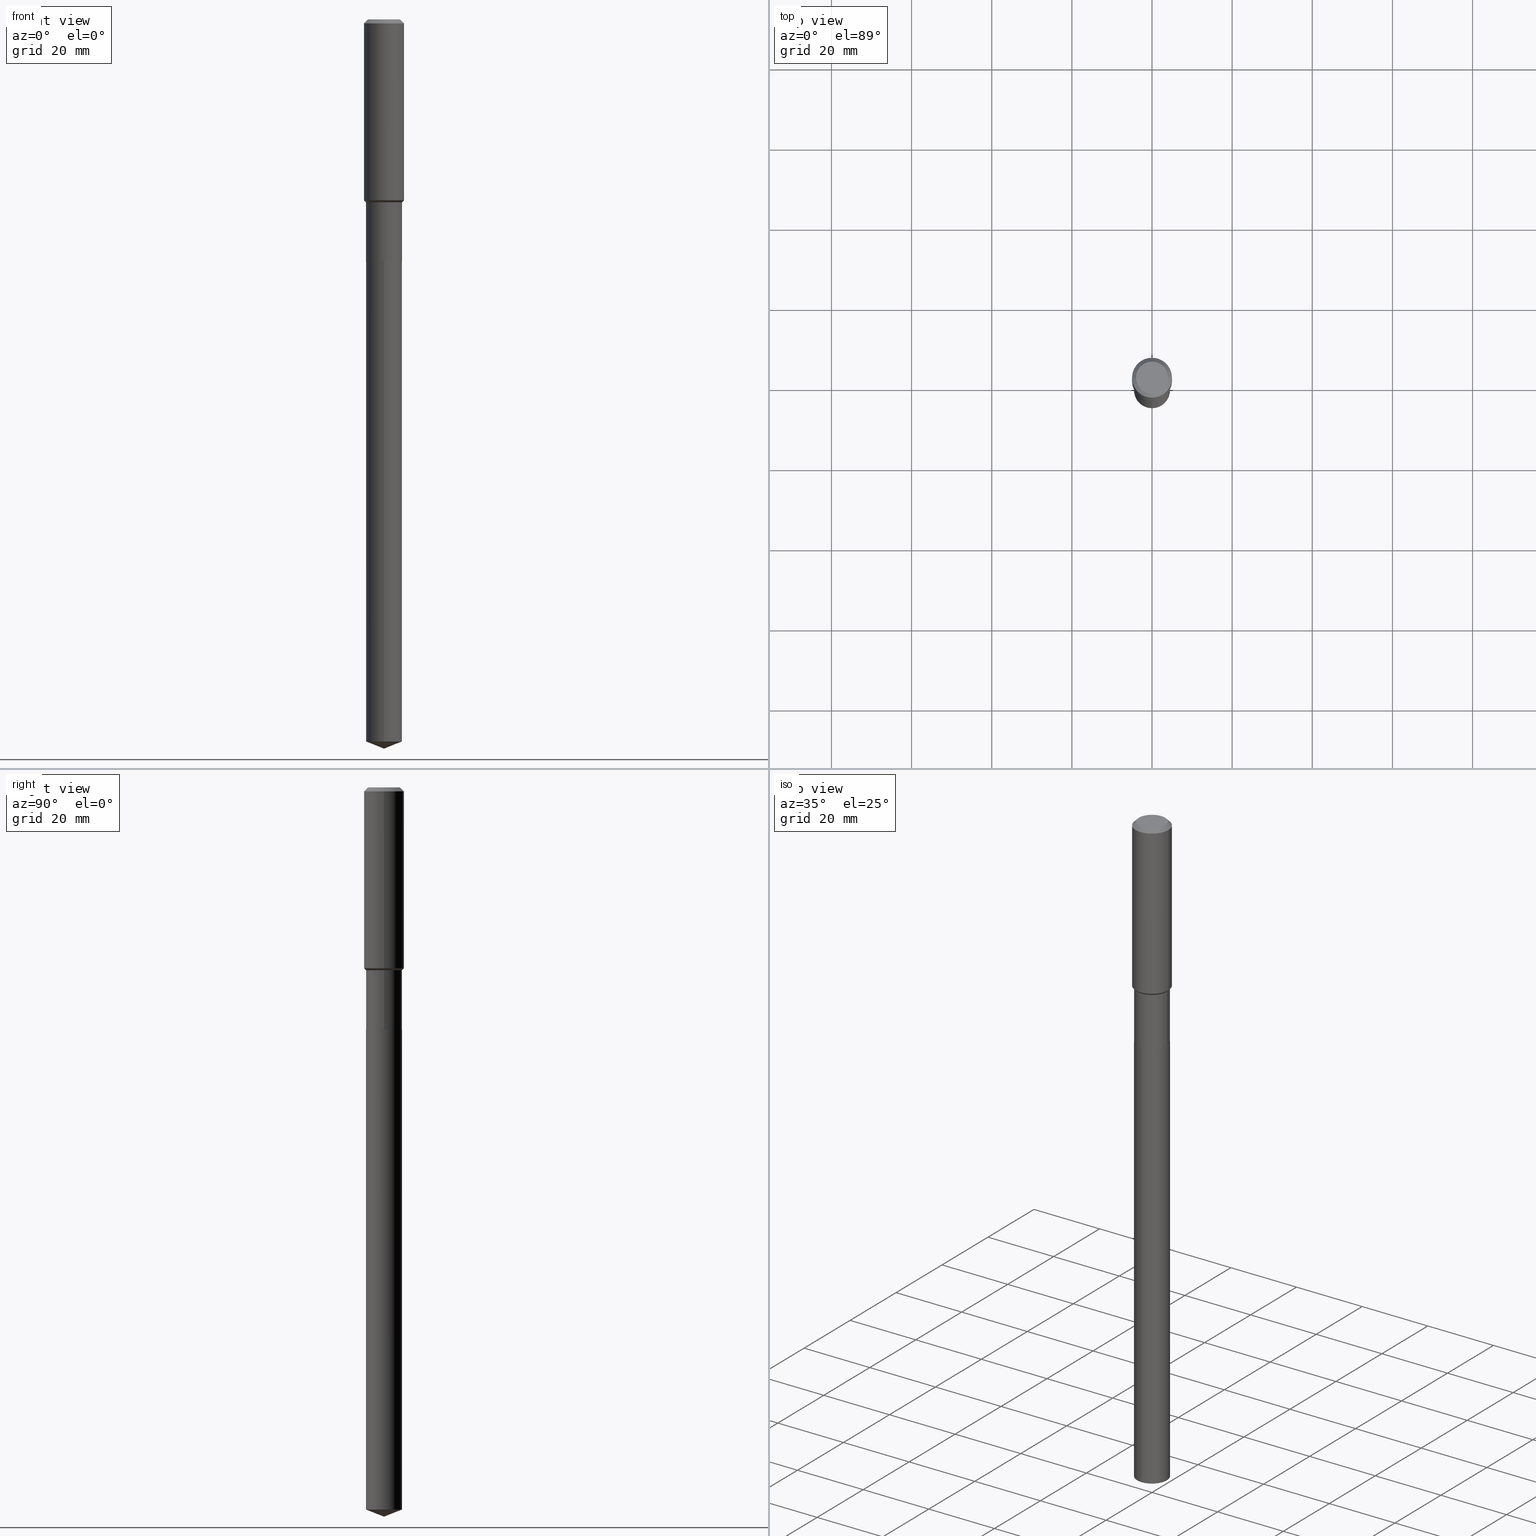
[diagram: canonical four-view strip — front | top / right | iso, engineering-drawing reading convention]
A machine part, canonical four-view strip (front | top / right | iso — engineering-drawing reading convention). The complete STEP part file that produces these views, byte-faithful:
ISO-10303-21;
HEADER;
FILE_DESCRIPTION (( 'STEP AP203' ),
    '1' );
FILE_NAME ('66769.STEP',
    '2024-04-25T05:45:25',
    ( '' ),
    ( '' ),
    'SwSTEP 2.0',
    'SolidWorks 2023',
    '' );
FILE_SCHEMA (( 'CONFIG_CONTROL_DESIGN' ));
ENDSEC;

DATA;
#1 = DIRECTION ( 'NONE',  ( -2.445468806185136597E-29, 3.491481338843145583E-15, 1.000000000000000000 ) ) ;
#2 = CIRCLE ( 'NONE', #179, 0.1771500000000000019 ) ;
#3 = ORIENTED_EDGE ( 'NONE', *, *, #36, .T. ) ;
#4 = DATE_AND_TIME ( #467, #297 ) ;
#5 = DIRECTION ( 'NONE',  ( -2.445468806185136597E-29, 3.491481338843145583E-15, 1.000000000000000000 ) ) ;
#6 = EDGE_CURVE ( 'NONE', #230, #444, #480, .T. ) ;
#7 = AXIS2_PLACEMENT_3D ( 'NONE', #332, #1, #293 ) ;
#8 = EDGE_LOOP ( 'NONE', ( #202, #478 ) ) ;
#9 = AXIS2_PLACEMENT_3D ( 'NONE', #237, #31, #133 ) ;
#10 = APPROVAL ( #277, 'UNSPECIFIED' ) ;
#11 = EDGE_LOOP ( 'NONE', ( #301, #402, #154, #58 ) ) ;
#12 = DIRECTION ( 'NONE',  ( -2.445468806185136597E-29, 3.491481338843145583E-15, 1.000000000000000000 ) ) ;
#13 = DIRECTION ( 'NONE',  ( -2.445468806185136597E-29, 3.491481338843145583E-15, 1.000000000000000000 ) ) ;
#14 = EDGE_CURVE ( 'NONE', #434, #428, #153, .T. ) ;
#15 = CARTESIAN_POINT ( 'NONE',  ( 0.1771500000000000574, -9.549899758003767043E-15, -2.380900000000000016 ) ) ;
#16 = CONICAL_SURFACE ( 'NONE', #311, 99.94676754583930745, 1.195550537616117293 ) ;
#17 = EDGE_LOOP ( 'NONE', ( #406, #459, #473, #193 ) ) ;
#18 = CC_DESIGN_APPROVAL ( #307, ( #189 ) ) ;
#19 = ADVANCED_FACE ( 'NONE', ( #175 ), #485, .F. ) ;
#20 = DIRECTION ( 'NONE',  ( -2.445443105492104363E-29, 3.491518143698360498E-15, 1.000000000000000000 ) ) ;
#21 = ORIENTED_EDGE ( 'NONE', *, *, #198, .F. ) ;
#22 = CARTESIAN_POINT ( 'NONE',  ( -0.1968500000000002192, -4.806357260048276677E-15, -1.777199999999999225 ) ) ;
#23 = ORIENTED_EDGE ( 'NONE', *, *, #462, .F. ) ;
#24 = CYLINDRICAL_SURFACE ( 'NONE', #42, 0.1771499999999999742 ) ;
#25 = DESIGN_CONTEXT ( 'detailed design', #238, 'design' ) ;
#26 = ORIENTED_EDGE ( 'NONE', *, *, #34, .T. ) ;
#27 = VECTOR ( 'NONE', #333, 39.37007874015748854 ) ;
#28 = VECTOR ( 'NONE', #337, 39.37007874015748143 ) ;
#29 = CARTESIAN_POINT ( 'NONE',  ( -7.875562656331807670E-28, 1.124447043875763845E-13, 32.20507874015748229 ) ) ;
#30 = VECTOR ( 'NONE', #111, 39.37007874015748143 ) ;
#31 = DIRECTION ( 'NONE',  ( -2.445468806185136597E-29, 3.491481338843145583E-15, 1.000000000000000000 ) ) ;
#32 = DIRECTION ( 'NONE',  ( -0.7071067811865462405, 7.493145998870349427E-15, 0.7071067811865486830 ) ) ;
#33 = PERSON_AND_ORGANIZATION_ROLE ( 'creator' ) ;
#34 = EDGE_CURVE ( 'NONE', #431, #470, #177, .T. ) ;
#35 = DIRECTION ( 'NONE',  ( -2.445443105492104363E-29, 3.491518143698360892E-15, 1.000000000000000000 ) ) ;
#36 = EDGE_CURVE ( 'NONE', #230, #245, #328, .T. ) ;
#37 = VECTOR ( 'NONE', #415, 39.37007874015748854 ) ;
#38 = CLOSED_SHELL ( 'NONE', ( #209, #441, #472, #203, #298, #136, #156, #205, #47, #416, #72, #181 ) ) ;
#39 = PERSON_AND_ORGANIZATION_ROLE ( 'design_supplier' ) ;
#40 = DIRECTION ( 'NONE',  ( -6.497071151882114314E-15, -0.9304175679820237965, 0.3665012267242991340 ) ) ;
#41 = DATE_AND_TIME ( #376, #108 ) ;
#42 = AXIS2_PLACEMENT_3D ( 'NONE', #101, #125, #64 ) ;
#43 = VECTOR ( 'NONE', #40, 39.37007874015748143 ) ;
#44 = EDGE_LOOP ( 'NONE', ( #207, #204 ) ) ;
#45 = PERSON_AND_ORGANIZATION ( #178, #100 ) ;
#46 = APPROVAL_DATE_TIME ( #4, #307 ) ;
#47 = ADVANCED_FACE ( 'NONE', ( #259 ), #299, .T. ) ;
#48 = FACE_OUTER_BOUND ( 'NONE', #201, .T. ) ;
#49 = PERSON_AND_ORGANIZATION ( #178, #100 ) ;
#50 = CARTESIAN_POINT ( 'NONE',  ( 0.1766500000000000015, -9.548154017334344750E-15, -2.381399999999999739 ) ) ;
#51 = ORIENTED_EDGE ( 'NONE', *, *, #120, .T. ) ;
#52 = CARTESIAN_POINT ( 'NONE',  ( 5.823639415049284810E-29, -8.314613660321066941E-15, -2.381399999999999739 ) ) ;
#53 = EDGE_CURVE ( 'NONE', #434, #385, #138, .T. ) ;
#54 = DIRECTION ( 'NONE',  ( -0.7071067811865452413, 2.468850131082233000E-15, -0.7071067811865497932 ) ) ;
#55 = DIRECTION ( 'NONE',  ( 6.982962677686265922E-15, 1.000000000000000000, -3.491518143698360892E-15 ) ) ;
#56 = FACE_OUTER_BOUND ( 'NONE', #388, .T. ) ;
#57 = CARTESIAN_POINT ( 'NONE',  ( 1.752159985085092732E-28, -2.501672749959875005E-14, -7.165000000000000036 ) ) ;
#58 = ORIENTED_EDGE ( 'NONE', *, *, #36, .F. ) ;
#59 = CIRCLE ( 'NONE', #224, 0.1968500000000000250 ) ;
#60 = PLANE ( 'NONE',  #420 ) ;
#61 = ORIENTED_EDGE ( 'NONE', *, *, #454, .T. ) ;
#62 = CARTESIAN_POINT ( 'NONE',  ( -9.427742298522567634E-47, 1.346031739168368355E-32, 3.855188123715870730E-18 ) ) ;
#63 = DIRECTION ( 'NONE',  ( -2.445468806185136597E-29, 3.491481338843145583E-15, 1.000000000000000000 ) ) ;
#64 = DIRECTION ( 'NONE',  ( 1.000000000000000000, -6.982962677686266711E-15, 4.876176775795935793E-29 ) ) ;
#65 = EDGE_CURVE ( 'NONE', #99, #281, #219, .T. ) ;
#66 = ORIENTED_EDGE ( 'NONE', *, *, #70, .T. ) ;
#67 = AXIS2_PLACEMENT_3D ( 'NONE', #286, #217, #253 ) ;
#68 = FACE_OUTER_BOUND ( 'NONE', #228, .T. ) ;
#69 = APPROVAL_DATE_TIME ( #410, #10 ) ;
#70 = EDGE_CURVE ( 'NONE', #281, #428, #141, .T. ) ;
#71 = CARTESIAN_POINT ( 'NONE',  ( 1.735101500038385623E-28, -2.477299738433002409E-14, -7.095218759244812823 ) ) ;
#72 = ADVANCED_FACE ( 'NONE', ( #79 ), #222, .F. ) ;
#73 = DIRECTION ( 'NONE',  ( 2.445468806185136597E-29, -3.491481338843145583E-15, -1.000000000000000000 ) ) ;
#74 = VECTOR ( 'NONE', #121, 39.37007874015748143 ) ;
#75 = EDGE_CURVE ( 'NONE', #281, #99, #412, .T. ) ;
#76 = AXIS2_PLACEMENT_3D ( 'NONE', #83, #377, #448 ) ;
#77 = DIRECTION ( 'NONE',  ( -1.000000000000000000, 6.982962677686265922E-15, 0.000000000000000000 ) ) ;
#78 = SECURITY_CLASSIFICATION_LEVEL ( 'unclassified' ) ;
#79 = FACE_OUTER_BOUND ( 'NONE', #44, .T. ) ;
#80 = ADVANCED_BREP_SHAPE_REPRESENTATION ( '66769', ( #443, #115, #123 ), #112 ) ;
#81 = DIRECTION ( 'NONE',  ( 0.000000000000000000, 0.000000000000000000, 1.000000000000000000 ) ) ;
#82 = COORDINATED_UNIVERSAL_TIME_OFFSET ( 5, 0, .BEHIND. ) ;
#83 = CARTESIAN_POINT ( 'NONE',  ( 5.823639415049284810E-29, -8.314613660321066941E-15, -2.381399999999999739 ) ) ;
#84 = VECTOR ( 'NONE', #200, 39.37007874015748143 ) ;
#85 = PERSON_AND_ORGANIZATION ( #178, #100 ) ;
#86 = EDGE_LOOP ( 'NONE', ( #270, #266, #211, #172 ) ) ;
#87 = FACE_OUTER_BOUND ( 'NONE', #346, .T. ) ;
#88 = FACE_OUTER_BOUND ( 'NONE', #86, .T. ) ;
#89 = DIRECTION ( 'NONE',  ( -2.445468806185136877E-29, 3.491481338843145188E-15, 1.000000000000000000 ) ) ;
#90 = CIRCLE ( 'NONE', #290, 0.1968500000000002192 ) ;
#91 = PRODUCT_DEFINITION_FORMATION_WITH_SPECIFIED_SOURCE ( 'ANY', '', #283, .NOT_KNOWN. ) ;
#92 = CARTESIAN_POINT ( 'NONE',  ( 4.394262897834071178E-29, -6.273842817767247228E-15, -1.796899999999999720 ) ) ;
#93 = ORIENTED_EDGE ( 'NONE', *, *, #214, .T. ) ;
#94 = DIRECTION ( 'NONE',  ( 1.000000000000000000, -6.982962677686264344E-15, 0.000000000000000000 ) ) ;
#95 = CALENDAR_DATE ( 2024, 25, 4 ) ;
#96 = ORIENTED_EDGE ( 'NONE', *, *, #392, .T. ) ;
#97 = CARTESIAN_POINT ( 'NONE',  ( -0.1968500000000000250, -1.772556752507387433E-15, -0.03937000000000026589 ) ) ;
#98 = CONICAL_SURFACE ( 'NONE', #150, 0.1766500000000000015, 0.7853981633975849475 ) ;
#99 = VERTEX_POINT ( 'NONE', #460 ) ;
#100 = ORGANIZATION ( 'UNSPECIFIED', 'UNSPECIFIED', '' ) ;
#101 = CARTESIAN_POINT ( 'NONE',  ( 0.000000000000000000, 0.000000000000000000, 0.000000000000000000 ) ) ;
#102 = ORIENTED_EDGE ( 'NONE', *, *, #454, .F. ) ;
#103 = CC_DESIGN_DATE_AND_TIME_ASSIGNMENT ( #251, #126, ( #433 ) ) ;
#104 = DIRECTION ( 'NONE',  ( -1.000000000000000000, 6.982962677686265922E-15, 0.000000000000000000 ) ) ;
#105 = COORDINATED_UNIVERSAL_TIME_OFFSET ( 5, 0, .BEHIND. ) ;
#106 = ORIENTED_EDGE ( 'NONE', *, *, #386, .F. ) ;
#107 = FACE_OUTER_BOUND ( 'NONE', #325, .T. ) ;
#108 = LOCAL_TIME ( 1, 45, 25.00000000000000000, #82 ) ;
#109 = FACE_OUTER_BOUND ( 'NONE', #17, .T. ) ;
#110 = CARTESIAN_POINT ( 'NONE',  ( 0.1968500000000001082, -1.374596203102542397E-15, 9.598753983154305062E-30 ) ) ;
#111 = DIRECTION ( 'NONE',  ( -2.445468806185136877E-29, 3.491481338843145188E-15, 1.000000000000000000 ) ) ;
#112 =( GEOMETRIC_REPRESENTATION_CONTEXT ( 3 ) GLOBAL_UNCERTAINTY_ASSIGNED_CONTEXT ( ( #417 ) ) GLOBAL_UNIT_ASSIGNED_CONTEXT ( ( #451, #296, #455 ) ) REPRESENTATION_CONTEXT ( 'NONE', 'WORKASPACE' ) );
#113 = PERSON_AND_ORGANIZATION_ROLE ( 'classification_officer' ) ;
#114 = EDGE_CURVE ( 'NONE', #278, #195, #147, .T. ) ;
#115 = MANIFOLD_SOLID_BREP ( 'Body-Move/Copy2[2]', #38 ) ;
#116 = MECHANICAL_CONTEXT ( 'NONE', #341, 'mechanical' ) ;
#117 = ORIENTED_EDGE ( 'NONE', *, *, #65, .T. ) ;
#118 = CARTESIAN_POINT ( 'NONE',  ( 4.346087162352223319E-29, -6.205060635392036043E-15, -1.777199999999999225 ) ) ;
#119 = CONICAL_SURFACE ( 'NONE', #280, 0.1968500000000000250, 0.7853981633974450594 ) ;
#120 = EDGE_CURVE ( 'NONE', #421, #245, #129, .T. ) ;
#121 = DIRECTION ( 'NONE',  ( 0.7071067811865452413, -7.319954787623248157E-15, -0.7071067811865497932 ) ) ;
#122 = CIRCLE ( 'NONE', #295, 0.1771500000000000019 ) ;
#123 = AXIS2_PLACEMENT_3D ( 'NONE', #260, #81, #375 ) ;
#124 = ORIENTED_EDGE ( 'NONE', *, *, #450, .T. ) ;
#125 = DIRECTION ( 'NONE',  ( -2.445468806185136597E-29, 3.491481338843145583E-15, 1.000000000000000000 ) ) ;
#126 = DATE_TIME_ROLE ( 'creation_date' ) ;
#127 = ORIENTED_EDGE ( 'NONE', *, *, #198, .T. ) ;
#128 = CARTESIAN_POINT ( 'NONE',  ( 9.627810689950948900E-31, -1.374596203102555561E-16, -0.03937000000000026589 ) ) ;
#129 = CIRCLE ( 'NONE', #319, 0.1771500000000000574 ) ;
#130 = ORIENTED_EDGE ( 'NONE', *, *, #414, .T. ) ;
#131 = VECTOR ( 'NONE', #327, 39.37007874015748143 ) ;
#132 = DIRECTION ( 'NONE',  ( 2.438088387897960049E-29, -3.491481338843145188E-15, -1.000000000000000000 ) ) ;
#133 = DIRECTION ( 'NONE',  ( 1.000000000000000000, -6.982962677686265922E-15, 0.000000000000000000 ) ) ;
#134 = DIRECTION ( 'NONE',  ( 1.000000000000000000, -6.982962677686265922E-15, 0.000000000000000000 ) ) ;
#135 = CARTESIAN_POINT ( 'NONE',  ( 5.823639415049284810E-29, -8.314613660321066941E-15, -2.381399999999999739 ) ) ;
#136 = ADVANCED_FACE ( 'NONE', ( #56 ), #291, .T. ) ;
#137 = CARTESIAN_POINT ( 'NONE',  ( -4.713871149261283817E-47, 6.730158695841841775E-33, 1.927594061857935365E-18 ) ) ;
#138 = LINE ( 'NONE', #449, #30 ) ;
#139 = AXIS2_PLACEMENT_3D ( 'NONE', #160, #312, #239 ) ;
#140 = APPROVAL_STATUS ( 'not_yet_approved' ) ;
#141 = LINE ( 'NONE', #294, #37 ) ;
#142 = CC_DESIGN_PERSON_AND_ORGANIZATION_ASSIGNMENT ( #401, #33, ( #91 ) ) ;
#143 = AXIS2_PLACEMENT_3D ( 'NONE', #191, #338, #268 ) ;
#144 = PERSON_AND_ORGANIZATION ( #178, #100 ) ;
#145 = ORIENTED_EDGE ( 'NONE', *, *, #258, .F. ) ;
#146 = SHAPE_DEFINITION_REPRESENTATION ( #324, #80 ) ;
#147 = LINE ( 'NONE', #194, #27 ) ;
#148 = CARTESIAN_POINT ( 'NONE',  ( 0.1771499999999999464, -7.510874656119368833E-15, -1.796899999999999720 ) ) ;
#149 = EDGE_LOOP ( 'NONE', ( #192, #240, #124, #145 ) ) ;
#150 = AXIS2_PLACEMENT_3D ( 'NONE', #269, #309, #94 ) ;
#151 = FACE_OUTER_BOUND ( 'NONE', #149, .T. ) ;
#152 = LOCAL_TIME ( 1, 45, 25.00000000000000000, #358 ) ;
#153 = CIRCLE ( 'NONE', #9, 0.1968500000000002192 ) ;
#154 = ORIENTED_EDGE ( 'NONE', *, *, #371, .F. ) ;
#155 = DIRECTION ( 'NONE',  ( 1.000000000000000000, -6.982962677686263555E-15, 0.000000000000000000 ) ) ;
#156 = ADVANCED_FACE ( 'NONE', ( #190 ), #354, .T. ) ;
#157 = ORIENTED_EDGE ( 'NONE', *, *, #256, .T. ) ;
#158 = DIRECTION ( 'NONE',  ( -6.982962677686265922E-15, -1.000000000000000000, 3.084220145260246224E-15 ) ) ;
#159 = ORIENTED_EDGE ( 'NONE', *, *, #414, .F. ) ;
#160 = CARTESIAN_POINT ( 'NONE',  ( 9.627810689950948900E-31, -1.374596203102555561E-16, -0.03937000000000026589 ) ) ;
#161 = CONICAL_SURFACE ( 'NONE', #364, 0.1771499999999999464, 0.7853981633974466137 ) ;
#162 = EDGE_LOOP ( 'NONE', ( #216, #465, #303, #164 ) ) ;
#163 = LINE ( 'NONE', #241, #457 ) ;
#164 = ORIENTED_EDGE ( 'NONE', *, *, #34, .F. ) ;
#165 = DIRECTION ( 'NONE',  ( -2.445443105492104363E-29, 3.491518143698360498E-15, 1.000000000000000000 ) ) ;
#166 = CC_DESIGN_PERSON_AND_ORGANIZATION_ASSIGNMENT ( #170, #481, ( #433 ) ) ;
#167 = ORIENTED_EDGE ( 'NONE', *, *, #120, .F. ) ;
#168 = DIRECTION ( 'NONE',  ( -2.445468806185136597E-29, 3.491481338843145583E-15, 1.000000000000000000 ) ) ;
#169 = CARTESIAN_POINT ( 'NONE',  ( 9.627810689950948900E-31, -1.374596203102555561E-16, -0.03937000000000026589 ) ) ;
#170 = PERSON_AND_ORGANIZATION ( #178, #100 ) ;
#171 = CIRCLE ( 'NONE', #139, 0.1968500000000000250 ) ;
#172 = ORIENTED_EDGE ( 'NONE', *, *, #70, .F. ) ;
#173 = DIRECTION ( 'NONE',  ( -6.982962677686265922E-15, -1.000000000000000000, 6.168440290520492448E-15 ) ) ;
#174 = COORDINATED_UNIVERSAL_TIME_OFFSET ( 5, 0, .BEHIND. ) ;
#175 = FACE_OUTER_BOUND ( 'NONE', #262, .T. ) ;
#176 = CARTESIAN_POINT ( 'NONE',  ( 1.735101500038385623E-28, -2.477299738433002409E-14, -7.095218759244812823 ) ) ;
#177 = LINE ( 'NONE', #221, #131 ) ;
#178 = PERSON ( 'UNSPECIFIED', 'UNSPECIFIED', 'UNSPECIFIED', ('UNSPECIFIED'), ('UNSPECIFIED'), ('UNSPECIFIED') ) ;
#179 = AXIS2_PLACEMENT_3D ( 'NONE', #71, #326, #173 ) ;
#180 = VECTOR ( 'NONE', #35, 39.37007874015748143 ) ;
#181 = ADVANCED_FACE ( 'NONE', ( #48 ), #387, .T. ) ;
#182 = DIRECTION ( 'NONE',  ( -2.445468806185136597E-29, 3.491481338843145583E-15, 1.000000000000000000 ) ) ;
#183 = LINE ( 'NONE', #373, #180 ) ;
#184 = EDGE_CURVE ( 'NONE', #421, #99, #274, .T. ) ;
#185 = DIRECTION ( 'NONE',  ( -2.438088387897960049E-29, 3.491481338843145188E-15, 1.000000000000000000 ) ) ;
#186 = EDGE_CURVE ( 'NONE', #428, #434, #90, .T. ) ;
#187 = APPLICATION_PROTOCOL_DEFINITION ( 'international standard', 'config_control_design', 1994, #341 ) ;
#188 = VECTOR ( 'NONE', #479, 39.37007874015748143 ) ;
#189 = SECURITY_CLASSIFICATION ( '', '', #78 ) ;
#190 = FACE_OUTER_BOUND ( 'NONE', #199, .T. ) ;
#191 = CARTESIAN_POINT ( 'NONE',  ( 4.394262897834071178E-29, -6.273842817767247228E-15, -1.796899999999999720 ) ) ;
#192 = ORIENTED_EDGE ( 'NONE', *, *, #53, .F. ) ;
#193 = ORIENTED_EDGE ( 'NONE', *, *, #231, .F. ) ;
#194 = CARTESIAN_POINT ( 'NONE',  ( 1.752172333147888775E-28, -2.501655220543433598E-14, -7.165000000000000036 ) ) ;
#195 = VERTEX_POINT ( 'NONE', #464 ) ;
#196 = CIRCLE ( 'NONE', #389, 0.1771500000000000019 ) ;
#197 = CARTESIAN_POINT ( 'NONE',  ( 0.1771499999999999742, -1.237031838352121999E-15, 8.638147158322498559E-30 ) ) ;
#198 = EDGE_CURVE ( 'NONE', #430, #470, #122, .T. ) ;
#199 = EDGE_LOOP ( 'NONE', ( #106, #117, #66, #359 ) ) ;
#200 = DIRECTION ( 'NONE',  ( -2.445468806185136877E-29, 3.491481338843145188E-15, 1.000000000000000000 ) ) ;
#201 = EDGE_LOOP ( 'NONE', ( #235, #362, #3, #167 ) ) ;
#202 = ORIENTED_EDGE ( 'NONE', *, *, #489, .T. ) ;
#203 = ADVANCED_FACE ( 'NONE', ( #88 ), #161, .T. ) ;
#204 = ORIENTED_EDGE ( 'NONE', *, *, #285, .F. ) ;
#205 = ADVANCED_FACE ( 'NONE', ( #151 ), #345, .T. ) ;
#206 = CARTESIAN_POINT ( 'NONE',  ( -0.1771500000000000574, -6.034628912310427854E-15, -2.380900000000000016 ) ) ;
#207 = ORIENTED_EDGE ( 'NONE', *, *, #6, .F. ) ;
#208 = DIRECTION ( 'NONE',  ( 1.000000000000000000, -6.982962677686265922E-15, 4.876223630392693006E-29 ) ) ;
#209 = ADVANCED_FACE ( 'NONE', ( #236 ), #98, .T. ) ;
#210 = APPROVAL_DATE_TIME ( #247, #343 ) ;
#211 = ORIENTED_EDGE ( 'NONE', *, *, #186, .F. ) ;
#212 = CARTESIAN_POINT ( 'NONE',  ( 5.823639415049284810E-29, -8.314613660321066941E-15, -2.381399999999999739 ) ) ;
#213 = DIMENSIONAL_EXPONENTS ( 1.000000000000000000, 0.000000000000000000, 0.000000000000000000, 0.000000000000000000, 0.000000000000000000, 0.000000000000000000, 0.000000000000000000 ) ;
#214 = EDGE_CURVE ( 'NONE', #273, #437, #426, .T. ) ;
#215 = CIRCLE ( 'NONE', #408, 0.1574800000000000089 ) ;
#216 = ORIENTED_EDGE ( 'NONE', *, *, #348, .T. ) ;
#217 = DIRECTION ( 'NONE',  ( -2.445443105492104363E-29, 3.491518143698360498E-15, 1.000000000000000000 ) ) ;
#218 = DIRECTION ( 'NONE',  ( 0.7071067811866441621, -2.468850131083269169E-15, 0.7071067811864508723 ) ) ;
#219 = CIRCLE ( 'NONE', #7, 0.1771499999999999464 ) ;
#220 = AXIS2_PLACEMENT_3D ( 'NONE', #232, #12, #424 ) ;
#221 = CARTESIAN_POINT ( 'NONE',  ( -1.237031838352063821E-15, -0.1771500000000083008, -2.381399999999999295 ) ) ;
#222 = PLANE ( 'NONE',  #398 ) ;
#223 = AXIS2_PLACEMENT_3D ( 'NONE', #403, #474, #484 ) ;
#224 = AXIS2_PLACEMENT_3D ( 'NONE', #169, #400, #134 ) ;
#225 = CYLINDRICAL_SURFACE ( 'NONE', #413, 0.1968500000000001082 ) ;
#226 = PERSON_AND_ORGANIZATION_ROLE ( 'design_owner' ) ;
#227 = APPROVAL_ROLE ( '' ) ;
#228 = EDGE_LOOP ( 'NONE', ( #353, #61, #159 ) ) ;
#229 = LINE ( 'NONE', #197, #452 ) ;
#230 = VERTEX_POINT ( 'NONE', #50 ) ;
#231 = EDGE_CURVE ( 'NONE', #245, #281, #229, .T. ) ;
#232 = CARTESIAN_POINT ( 'NONE',  ( -9.427742298522567634E-47, 1.346031739168368355E-32, 3.855188123715870730E-18 ) ) ;
#233 = CARTESIAN_POINT ( 'NONE',  ( -0.1968500000000000250, 1.237136582792286225E-15, -0.03937000000000026589 ) ) ;
#234 = CLOSED_SHELL ( 'NONE', ( #447, #379, #292, #302, #19 ) ) ;
#235 = ORIENTED_EDGE ( 'NONE', *, *, #382, .F. ) ;
#236 = FACE_OUTER_BOUND ( 'NONE', #11, .T. ) ;
#237 = CARTESIAN_POINT ( 'NONE',  ( 4.346087162352223319E-29, -6.205060635392036043E-15, -1.777199999999999225 ) ) ;
#238 = APPLICATION_CONTEXT ( 'configuration controlled 3d designs of mechanical parts and assemblies' ) ;
#239 = DIRECTION ( 'NONE',  ( 1.000000000000000000, -6.982962677686265922E-15, 0.000000000000000000 ) ) ;
#240 = ORIENTED_EDGE ( 'NONE', *, *, #14, .T. ) ;
#241 = CARTESIAN_POINT ( 'NONE',  ( -0.1771499999999999464, -5.015116361368230327E-15, -1.796899999999999720 ) ) ;
#242 = CONICAL_SURFACE ( 'NONE', #67, 99.94676754583930745, 1.195550537616117293 ) ;
#243 = APPROVAL_ROLE ( '' ) ;
#244 = LOCAL_TIME ( 1, 45, 25.00000000000000000, #174 ) ;
#245 = VERTEX_POINT ( 'NONE', #15 ) ;
#246 = DIRECTION ( 'NONE',  ( -6.982962677686265922E-15, -1.000000000000000000, 6.168440290520492448E-15 ) ) ;
#247 = DATE_AND_TIME ( #95, #152 ) ;
#248 = CARTESIAN_POINT ( 'NONE',  ( 5.823639415049284810E-29, -8.314613660321066941E-15, -2.381399999999999739 ) ) ;
#249 = DIRECTION ( 'NONE',  ( 1.000000000000000000, -6.982962677686264344E-15, 0.000000000000000000 ) ) ;
#250 = CARTESIAN_POINT ( 'NONE',  ( -0.1766500000000000015, -7.056790690426738949E-15, -2.381399999999999739 ) ) ;
#251 = DATE_AND_TIME ( #475, #458 ) ;
#252 = EDGE_LOOP ( 'NONE', ( #367, #463, #157, #482 ) ) ;
#253 = DIRECTION ( 'NONE',  ( -6.982962677686268288E-15, -1.000000000000000000, 3.498627837350027494E-15 ) ) ;
#254 = AXIS2_PLACEMENT_3D ( 'NONE', #490, #73, #77 ) ;
#255 = DIRECTION ( 'NONE',  ( -6.982962677686265922E-15, -1.000000000000000000, 3.084220145260246224E-15 ) ) ;
#256 = EDGE_CURVE ( 'NONE', #342, #385, #468, .T. ) ;
#257 = LINE ( 'NONE', #372, #43 ) ;
#258 = EDGE_CURVE ( 'NONE', #385, #437, #171, .T. ) ;
#259 = FACE_OUTER_BOUND ( 'NONE', #252, .T. ) ;
#260 = CARTESIAN_POINT ( 'NONE',  ( 0.000000000000000000, 0.000000000000000000, 0.000000000000000000 ) ) ;
#261 = CC_DESIGN_PERSON_AND_ORGANIZATION_ASSIGNMENT ( #144, #113, ( #189 ) ) ;
#262 = EDGE_LOOP ( 'NONE', ( #393, #127 ) ) ;
#263 = VECTOR ( 'NONE', #54, 39.37007874015748143 ) ;
#264 = DIRECTION ( 'NONE',  ( -2.445443105492104363E-29, 3.491518143698360498E-15, 1.000000000000000000 ) ) ;
#265 = DIRECTION ( 'NONE',  ( 1.000000000000000000, -6.982962677686265922E-15, 0.000000000000000000 ) ) ;
#266 = ORIENTED_EDGE ( 'NONE', *, *, #386, .T. ) ;
#267 = CC_DESIGN_PERSON_AND_ORGANIZATION_ASSIGNMENT ( #331, #39, ( #91 ) ) ;
#268 = DIRECTION ( 'NONE',  ( 1.000000000000000000, -6.982962677686263555E-15, 0.000000000000000000 ) ) ;
#269 = CARTESIAN_POINT ( 'NONE',  ( 5.823639415049284810E-29, -8.314613660321066941E-15, -2.381399999999999739 ) ) ;
#270 = ORIENTED_EDGE ( 'NONE', *, *, #75, .T. ) ;
#271 = CIRCLE ( 'NONE', #378, 0.1771500000000000574 ) ;
#272 = CARTESIAN_POINT ( 'NONE',  ( 0.000000000000000000, 0.000000000000000000, 0.000000000000000000 ) ) ;
#273 = VERTEX_POINT ( 'NONE', #396 ) ;
#274 = LINE ( 'NONE', #461, #84 ) ;
#275 = ORIENTED_EDGE ( 'NONE', *, *, #186, .T. ) ;
#276 = CYLINDRICAL_SURFACE ( 'NONE', #427, 0.1771500000000000019 ) ;
#277 = APPROVAL_STATUS ( 'not_yet_approved' ) ;
#278 = VERTEX_POINT ( 'NONE', #57 ) ;
#279 = CARTESIAN_POINT ( 'NONE',  ( 0.1968500000000002192, -7.579656838494578440E-15, -1.777199999999999225 ) ) ;
#280 = AXIS2_PLACEMENT_3D ( 'NONE', #128, #282, #104 ) ;
#281 = VERTEX_POINT ( 'NONE', #148 ) ;
#282 = DIRECTION ( 'NONE',  ( 2.445468806185136597E-29, -3.491481338843145583E-15, -1.000000000000000000 ) ) ;
#283 = PRODUCT ( '66769', '66769', '', ( #116 ) ) ;
#284 = EDGE_LOOP ( 'NONE', ( #102, #352, #395 ) ) ;
#285 = EDGE_CURVE ( 'NONE', #444, #230, #488, .T. ) ;
#286 = CARTESIAN_POINT ( 'NONE',  ( -7.875562656331807670E-28, 1.124447043875763845E-13, 32.20507874015748229 ) ) ;
#287 = DIRECTION ( 'NONE',  ( 2.445443105492103802E-29, -3.491518143698360892E-15, -1.000000000000000000 ) ) ;
#288 = CARTESIAN_POINT ( 'NONE',  ( 1.258726456399191831E-15, 0.1771499999999917030, -2.381400000000000627 ) ) ;
#289 = EDGE_CURVE ( 'NONE', #470, #430, #419, .T. ) ;
#290 = AXIS2_PLACEMENT_3D ( 'NONE', #118, #429, #265 ) ;
#291 = CYLINDRICAL_SURFACE ( 'NONE', #304, 0.1771499999999999742 ) ;
#292 = ADVANCED_FACE ( 'NONE', ( #68 ), #16, .T. ) ;
#293 = DIRECTION ( 'NONE',  ( 1.000000000000000000, -6.982962677686263555E-15, 0.000000000000000000 ) ) ;
#294 = CARTESIAN_POINT ( 'NONE',  ( 0.1771499999999999464, -7.510874656119368833E-15, -1.796899999999999720 ) ) ;
#295 = AXIS2_PLACEMENT_3D ( 'NONE', #52, #264, #158 ) ;
#296 =( NAMED_UNIT ( * ) PLANE_ANGLE_UNIT ( ) SI_UNIT ( $, .RADIAN. ) );
#297 = LOCAL_TIME ( 1, 45, 25.00000000000000000, #383 ) ;
#298 = ADVANCED_FACE ( 'NONE', ( #109 ), #24, .T. ) ;
#299 = CONICAL_SURFACE ( 'NONE', #254, 0.1968500000000000250, 0.7853981633974450594 ) ;
#300 = CYLINDRICAL_SURFACE ( 'NONE', #76, 0.1771500000000000019 ) ;
#301 = ORIENTED_EDGE ( 'NONE', *, *, #6, .T. ) ;
#302 = ADVANCED_FACE ( 'NONE', ( #107 ), #276, .T. ) ;
#303 = ORIENTED_EDGE ( 'NONE', *, *, #289, .F. ) ;
#304 = AXIS2_PLACEMENT_3D ( 'NONE', #369, #182, #330 ) ;
#305 = CC_DESIGN_SECURITY_CLASSIFICATION ( #189, ( #91 ) ) ;
#306 = DIRECTION ( 'NONE',  ( 1.000000000000000000, -6.982962677686266711E-15, 4.876176775795935793E-29 ) ) ;
#307 = APPROVAL ( #339, 'UNSPECIFIED' ) ;
#308 = DIRECTION ( 'NONE',  ( 1.000000000000000000, -6.982962677686264344E-15, 0.000000000000000000 ) ) ;
#309 = DIRECTION ( 'NONE',  ( -2.445468806185136597E-29, 3.491481338843145583E-15, 1.000000000000000000 ) ) ;
#310 = ORIENTED_EDGE ( 'NONE', *, *, #392, .F. ) ;
#311 = AXIS2_PLACEMENT_3D ( 'NONE', #29, #20, #407 ) ;
#312 = DIRECTION ( 'NONE',  ( -2.445468806185136597E-29, 3.491481338843145583E-15, 1.000000000000000000 ) ) ;
#313 = ORIENTED_EDGE ( 'NONE', *, *, #340, .F. ) ;
#314 = CARTESIAN_POINT ( 'NONE',  ( 5.822416680646192008E-29, -8.312867919651646226E-15, -2.380900000000000016 ) ) ;
#315 = ORIENTED_EDGE ( 'NONE', *, *, #256, .F. ) ;
#316 = CARTESIAN_POINT ( 'NONE',  ( 0.1968500000000000250, -1.512055823412797189E-15, -0.03937000000000026589 ) ) ;
#317 = ORIENTED_EDGE ( 'NONE', *, *, #65, .F. ) ;
#318 = FACE_OUTER_BOUND ( 'NONE', #8, .T. ) ;
#319 = AXIS2_PLACEMENT_3D ( 'NONE', #438, #168, #249 ) ;
#320 = AXIS2_PLACEMENT_3D ( 'NONE', #248, #63, #321 ) ;
#321 = DIRECTION ( 'NONE',  ( 1.000000000000000000, -6.982962677686264344E-15, 0.000000000000000000 ) ) ;
#322 = DIRECTION ( 'NONE',  ( -1.000000000000000000, 6.982962677686265922E-15, -4.876176775795935793E-29 ) ) ;
#323 = CALENDAR_DATE ( 2024, 25, 4 ) ;
#324 = PRODUCT_DEFINITION_SHAPE ( 'NONE', 'NONE',  #433 ) ;
#325 = EDGE_LOOP ( 'NONE', ( #23, #130, #26, #21 ) ) ;
#326 = DIRECTION ( 'NONE',  ( -2.445443105492104363E-29, 3.491518143698360498E-15, 1.000000000000000000 ) ) ;
#327 = DIRECTION ( 'NONE',  ( -2.445443105492104363E-29, 3.491518143698360892E-15, 1.000000000000000000 ) ) ;
#328 = LINE ( 'NONE', #487, #390 ) ;
#329 = LENGTH_MEASURE_WITH_UNIT ( LENGTH_MEASURE( 0.02539999999999999897 ), #360 );
#330 = DIRECTION ( 'NONE',  ( 1.000000000000000000, -6.982962677686266711E-15, 4.876176775795935793E-29 ) ) ;
#331 = PERSON_AND_ORGANIZATION ( #178, #100 ) ;
#332 = CARTESIAN_POINT ( 'NONE',  ( 4.394262897834071178E-29, -6.273842817767247228E-15, -1.796899999999999720 ) ) ;
#333 = DIRECTION ( 'NONE',  ( 6.611014441532060278E-15, 0.9304175679820263500, 0.3665012267242925281 ) ) ;
#334 = AXIS2_PLACEMENT_3D ( 'NONE', #425, #456, #308 ) ;
#335 = CIRCLE ( 'NONE', #220, 0.1574800000000000089 ) ;
#336 = DATE_TIME_ROLE ( 'classification_date' ) ;
#337 = DIRECTION ( 'NONE',  ( -2.445468806185136877E-29, 3.491481338843145188E-15, 1.000000000000000000 ) ) ;
#338 = DIRECTION ( 'NONE',  ( -2.445468806185136597E-29, 3.491481338843145583E-15, 1.000000000000000000 ) ) ;
#339 = APPROVAL_STATUS ( 'not_yet_approved' ) ;
#340 = EDGE_CURVE ( 'NONE', #273, #342, #215, .T. ) ;
#341 = APPLICATION_CONTEXT ( 'configuration controlled 3d designs of mechanical parts and assemblies' ) ;
#342 = VERTEX_POINT ( 'NONE', #432 ) ;
#343 = APPROVAL ( #140, 'UNSPECIFIED' ) ;
#344 = DIRECTION ( 'NONE',  ( -2.445468806185136597E-29, 3.491481338843145583E-15, 1.000000000000000000 ) ) ;
#345 = CYLINDRICAL_SURFACE ( 'NONE', #469, 0.1968500000000001082 ) ;
#346 = EDGE_LOOP ( 'NONE', ( #275, #404, #310, #440 ) ) ;
#347 = AXIS2_PLACEMENT_3D ( 'NONE', #135, #287, #55 ) ;
#348 = EDGE_CURVE ( 'NONE', #431, #195, #2, .T. ) ;
#349 = DIRECTION ( 'NONE',  ( 1.000000000000000000, -6.982962677686265922E-15, 4.876176775795935793E-29 ) ) ;
#350 = CARTESIAN_POINT ( 'NONE',  ( -1.237031838352063821E-15, -0.1771500000000083008, -2.381399999999999295 ) ) ;
#351 = CC_DESIGN_PERSON_AND_ORGANIZATION_ASSIGNMENT ( #85, #226, ( #283 ) ) ;
#352 = ORIENTED_EDGE ( 'NONE', *, *, #114, .T. ) ;
#353 = ORIENTED_EDGE ( 'NONE', *, *, #114, .F. ) ;
#354 = CONICAL_SURFACE ( 'NONE', #366, 0.1771499999999999464, 0.7853981633974466137 ) ;
#355 = DIRECTION ( 'NONE',  ( -2.445468806185136597E-29, 3.491481338843145583E-15, 1.000000000000000000 ) ) ;
#356 = ORIENTED_EDGE ( 'NONE', *, *, #231, .T. ) ;
#357 = DIRECTION ( 'NONE',  ( 1.000000000000000000, -6.982962677686264344E-15, 0.000000000000000000 ) ) ;
#358 = COORDINATED_UNIVERSAL_TIME_OFFSET ( 5, 0, .BEHIND. ) ;
#359 = ORIENTED_EDGE ( 'NONE', *, *, #14, .F. ) ;
#360 =( LENGTH_UNIT ( ) NAMED_UNIT ( * ) SI_UNIT ( $, .METRE. ) );
#361 = FACE_OUTER_BOUND ( 'NONE', #284, .T. ) ;
#362 = ORIENTED_EDGE ( 'NONE', *, *, #285, .T. ) ;
#363 = DIRECTION ( 'NONE',  ( -2.445443105492104363E-29, 3.491518143698360498E-15, 1.000000000000000000 ) ) ;
#364 = AXIS2_PLACEMENT_3D ( 'NONE', #92, #422, #391 ) ;
#365 = PERSON_AND_ORGANIZATION ( #178, #100 ) ;
#366 = AXIS2_PLACEMENT_3D ( 'NONE', #446, #13, #155 ) ;
#367 = ORIENTED_EDGE ( 'NONE', *, *, #214, .F. ) ;
#368 = LINE ( 'NONE', #486, #188 ) ;
#369 = CARTESIAN_POINT ( 'NONE',  ( 0.000000000000000000, 0.000000000000000000, 0.000000000000000000 ) ) ;
#370 = CC_DESIGN_APPROVAL ( #343, ( #433 ) ) ;
#371 = EDGE_CURVE ( 'NONE', #245, #421, #271, .T. ) ;
#372 = CARTESIAN_POINT ( 'NONE',  ( 1.752159985085092732E-28, -2.501672749959875005E-14, -7.165000000000000036 ) ) ;
#373 = CARTESIAN_POINT ( 'NONE',  ( 1.258726456399075671E-15, 0.1771499999999917030, -2.381400000000000627 ) ) ;
#374 = CARTESIAN_POINT ( 'NONE',  ( 5.823639415049284810E-29, -8.314613660321066941E-15, -2.381399999999999739 ) ) ;
#375 = DIRECTION ( 'NONE',  ( 1.000000000000000000, 0.000000000000000000, 0.000000000000000000 ) ) ;
#376 = CALENDAR_DATE ( 2024, 25, 4 ) ;
#377 = DIRECTION ( 'NONE',  ( -2.445443105492104363E-29, 3.491518143698360498E-15, 1.000000000000000000 ) ) ;
#378 = AXIS2_PLACEMENT_3D ( 'NONE', #314, #355, #357 ) ;
#379 = ADVANCED_FACE ( 'NONE', ( #361 ), #242, .T. ) ;
#380 = DIRECTION ( 'NONE',  ( 1.000000000000000000, -6.982962677686266711E-15, 4.876176775795935793E-29 ) ) ;
#381 = APPLICATION_PROTOCOL_DEFINITION ( 'international standard', 'config_control_design', 1994, #238 ) ;
#382 = EDGE_CURVE ( 'NONE', #444, #421, #368, .T. ) ;
#383 = COORDINATED_UNIVERSAL_TIME_OFFSET ( 5, 0, .BEHIND. ) ;
#384 = CARTESIAN_POINT ( 'NONE',  ( 0.000000000000000000, 0.000000000000000000, 0.000000000000000000 ) ) ;
#385 = VERTEX_POINT ( 'NONE', #97 ) ;
#386 = EDGE_CURVE ( 'NONE', #99, #434, #163, .T. ) ;
#387 = CONICAL_SURFACE ( 'NONE', #334, 0.1766500000000000015, 0.7853981633975849475 ) ;
#388 = EDGE_LOOP ( 'NONE', ( #476, #51, #356, #317 ) ) ;
#389 = AXIS2_PLACEMENT_3D ( 'NONE', #176, #165, #246 ) ;
#390 = VECTOR ( 'NONE', #218, 39.37007874015748143 ) ;
#391 = DIRECTION ( 'NONE',  ( 1.000000000000000000, -6.982962677686263555E-15, 0.000000000000000000 ) ) ;
#392 = EDGE_CURVE ( 'NONE', #437, #385, #59, .T. ) ;
#393 = ORIENTED_EDGE ( 'NONE', *, *, #289, .T. ) ;
#394 = CARTESIAN_POINT ( 'NONE',  ( 0.1968500000000000250, -1.487948651171581601E-15, -0.03937000000000026589 ) ) ;
#395 = ORIENTED_EDGE ( 'NONE', *, *, #348, .F. ) ;
#396 = CARTESIAN_POINT ( 'NONE',  ( 0.1574800000000000089, -1.284169937930321189E-15, 3.855188123724205385E-18 ) ) ;
#397 = EDGE_LOOP ( 'NONE', ( #313, #93, #96, #315 ) ) ;
#398 = AXIS2_PLACEMENT_3D ( 'NONE', #374, #185, #349 ) ;
#399 = CC_DESIGN_APPROVAL ( #10, ( #91 ) ) ;
#400 = DIRECTION ( 'NONE',  ( -2.445468806185136597E-29, 3.491481338843145583E-15, 1.000000000000000000 ) ) ;
#401 = PERSON_AND_ORGANIZATION ( #178, #100 ) ;
#402 = ORIENTED_EDGE ( 'NONE', *, *, #382, .T. ) ;
#403 = CARTESIAN_POINT ( 'NONE',  ( 5.823639415049284810E-29, -8.314613660321066941E-15, -2.381399999999999739 ) ) ;
#404 = ORIENTED_EDGE ( 'NONE', *, *, #53, .T. ) ;
#405 = FACE_OUTER_BOUND ( 'NONE', #162, .T. ) ;
#406 = ORIENTED_EDGE ( 'NONE', *, *, #371, .T. ) ;
#407 = DIRECTION ( 'NONE',  ( -6.982962677686268288E-15, -1.000000000000000000, 3.498627837350027494E-15 ) ) ;
#408 = AXIS2_PLACEMENT_3D ( 'NONE', #62, #411, #208 ) ;
#409 = APPROVAL_PERSON_ORGANIZATION ( #45, #343, #423 ) ;
#410 = DATE_AND_TIME ( #323, #244 ) ;
#411 = DIRECTION ( 'NONE',  ( -2.445468806185136597E-29, 3.491481338843145583E-15, 1.000000000000000000 ) ) ;
#412 = CIRCLE ( 'NONE', #143, 0.1771499999999999464 ) ;
#413 = AXIS2_PLACEMENT_3D ( 'NONE', #272, #344, #380 ) ;
#414 = EDGE_CURVE ( 'NONE', #195, #431, #196, .T. ) ;
#415 = DIRECTION ( 'NONE',  ( 0.7071067811865462405, -2.468850131082243650E-15, 0.7071067811865486830 ) ) ;
#416 = ADVANCED_FACE ( 'NONE', ( #318 ), #60, .F. ) ;
#417 = UNCERTAINTY_MEASURE_WITH_UNIT (LENGTH_MEASURE( 1.000000000000000082E-05 ), #451, 'distance_accuracy_value', 'NONE');
#418 = LINE ( 'NONE', #110, #28 ) ;
#419 = CIRCLE ( 'NONE', #435, 0.1771500000000000019 ) ;
#420 = AXIS2_PLACEMENT_3D ( 'NONE', #137, #132, #322 ) ;
#421 = VERTEX_POINT ( 'NONE', #206 ) ;
#422 = DIRECTION ( 'NONE',  ( -2.445468806185136597E-29, 3.491481338843145583E-15, 1.000000000000000000 ) ) ;
#423 = APPROVAL_ROLE ( '' ) ;
#424 = DIRECTION ( 'NONE',  ( 1.000000000000000000, -6.982962677686265922E-15, 4.876223630392693006E-29 ) ) ;
#425 = CARTESIAN_POINT ( 'NONE',  ( 5.823639415049284810E-29, -8.314613660321066941E-15, -2.381399999999999739 ) ) ;
#426 = LINE ( 'NONE', #394, #74 ) ;
#427 = AXIS2_PLACEMENT_3D ( 'NONE', #212, #363, #255 ) ;
#428 = VERTEX_POINT ( 'NONE', #279 ) ;
#429 = DIRECTION ( 'NONE',  ( -2.445468806185136597E-29, 3.491481338843145583E-15, 1.000000000000000000 ) ) ;
#430 = VERTEX_POINT ( 'NONE', #288 ) ;
#431 = VERTEX_POINT ( 'NONE', #445 ) ;
#432 = CARTESIAN_POINT ( 'NONE',  ( -0.1574800000000000089, 1.168406772637159618E-15, 3.855188123707939751E-18 ) ) ;
#433 = PRODUCT_DEFINITION ( 'UNKNOWN', '', #91, #25 ) ;
#434 = VERTEX_POINT ( 'NONE', #22 ) ;
#435 = AXIS2_PLACEMENT_3D ( 'NONE', #442, #439, #436 ) ;
#436 = DIRECTION ( 'NONE',  ( -6.982962677686265922E-15, -1.000000000000000000, 3.084220145260246224E-15 ) ) ;
#437 = VERTEX_POINT ( 'NONE', #316 ) ;
#438 = CARTESIAN_POINT ( 'NONE',  ( 5.822416680646192008E-29, -8.312867919651646226E-15, -2.380900000000000016 ) ) ;
#439 = DIRECTION ( 'NONE',  ( -2.445443105492104363E-29, 3.491518143698360498E-15, 1.000000000000000000 ) ) ;
#440 = ORIENTED_EDGE ( 'NONE', *, *, #450, .F. ) ;
#441 = ADVANCED_FACE ( 'NONE', ( #477 ), #119, .T. ) ;
#442 = CARTESIAN_POINT ( 'NONE',  ( 5.823639415049284810E-29, -8.314613660321066941E-15, -2.381399999999999739 ) ) ;
#443 = MANIFOLD_SOLID_BREP ( 'Body-Move/Copy2[1]', #234 ) ;
#444 = VERTEX_POINT ( 'NONE', #250 ) ;
#445 = CARTESIAN_POINT ( 'NONE',  ( -1.237031838351948450E-15, -0.1771500000000247321, -7.095218759244811935 ) ) ;
#446 = CARTESIAN_POINT ( 'NONE',  ( 4.394262897834071178E-29, -6.273842817767247228E-15, -1.796899999999999720 ) ) ;
#447 = ADVANCED_FACE ( 'NONE', ( #405 ), #300, .T. ) ;
#448 = DIRECTION ( 'NONE',  ( -6.982962677686265922E-15, -1.000000000000000000, 3.084220145260246224E-15 ) ) ;
#449 = CARTESIAN_POINT ( 'NONE',  ( -0.1968500000000001082, 1.398703375343757985E-15, -9.682923725166787881E-30 ) ) ;
#450 = EDGE_CURVE ( 'NONE', #428, #437, #418, .T. ) ;
#451 =( CONVERSION_BASED_UNIT ( 'INCH', #329 ) LENGTH_UNIT ( ) NAMED_UNIT ( #213 ) );
#452 = VECTOR ( 'NONE', #89, 39.37007874015748143 ) ;
#453 = APPROVAL_PERSON_ORGANIZATION ( #365, #10, #243 ) ;
#454 = EDGE_CURVE ( 'NONE', #278, #431, #257, .T. ) ;
#455 =( NAMED_UNIT ( * ) SI_UNIT ( $, .STERADIAN. ) SOLID_ANGLE_UNIT ( ) );
#456 = DIRECTION ( 'NONE',  ( -2.445468806185136597E-29, 3.491481338843145583E-15, 1.000000000000000000 ) ) ;
#457 = VECTOR ( 'NONE', #32, 39.37007874015748854 ) ;
#458 = LOCAL_TIME ( 1, 45, 25.00000000000000000, #105 ) ;
#459 = ORIENTED_EDGE ( 'NONE', *, *, #184, .T. ) ;
#460 = CARTESIAN_POINT ( 'NONE',  ( -0.1771499999999999464, -6.034628912310428643E-15, -1.796899999999999720 ) ) ;
#461 = CARTESIAN_POINT ( 'NONE',  ( -0.1771499999999999742, 1.258726456399017296E-15, -8.713893512386563924E-30 ) ) ;
#462 = EDGE_CURVE ( 'NONE', #195, #430, #183, .T. ) ;
#463 = ORIENTED_EDGE ( 'NONE', *, *, #489, .F. ) ;
#464 = CARTESIAN_POINT ( 'NONE',  ( 1.258726456399190845E-15, 0.1771499999999752439, -7.095218759244813711 ) ) ;
#465 = ORIENTED_EDGE ( 'NONE', *, *, #462, .T. ) ;
#466 = CC_DESIGN_DATE_AND_TIME_ASSIGNMENT ( #41, #336, ( #189 ) ) ;
#467 = CALENDAR_DATE ( 2024, 25, 4 ) ;
#468 = LINE ( 'NONE', #233, #263 ) ;
#469 = AXIS2_PLACEMENT_3D ( 'NONE', #384, #5, #306 ) ;
#470 = VERTEX_POINT ( 'NONE', #350 ) ;
#471 = APPROVAL_PERSON_ORGANIZATION ( #49, #307, #227 ) ;
#472 = ADVANCED_FACE ( 'NONE', ( #87 ), #225, .T. ) ;
#473 = ORIENTED_EDGE ( 'NONE', *, *, #75, .F. ) ;
#474 = DIRECTION ( 'NONE',  ( -2.445468806185136597E-29, 3.491481338843145583E-15, 1.000000000000000000 ) ) ;
#475 = CALENDAR_DATE ( 2024, 25, 4 ) ;
#476 = ORIENTED_EDGE ( 'NONE', *, *, #184, .F. ) ;
#477 = FACE_OUTER_BOUND ( 'NONE', #397, .T. ) ;
#478 = ORIENTED_EDGE ( 'NONE', *, *, #340, .T. ) ;
#479 = DIRECTION ( 'NONE',  ( -0.7071067811866441621, 7.493145998870704414E-15, 0.7071067811864508723 ) ) ;
#480 = CIRCLE ( 'NONE', #320, 0.1766500000000000015 ) ;
#481 = PERSON_AND_ORGANIZATION_ROLE ( 'creator' ) ;
#482 = ORIENTED_EDGE ( 'NONE', *, *, #258, .T. ) ;
#483 = PRODUCT_RELATED_PRODUCT_CATEGORY ( 'detail', '', ( #283 ) ) ;
#484 = DIRECTION ( 'NONE',  ( 1.000000000000000000, -6.982962677686264344E-15, 0.000000000000000000 ) ) ;
#485 = PLANE ( 'NONE',  #347 ) ;
#486 = CARTESIAN_POINT ( 'NONE',  ( -0.1766500000000000015, -7.059439917600850150E-15, -2.381399999999999739 ) ) ;
#487 = CARTESIAN_POINT ( 'NONE',  ( 0.1766500000000000015, -9.548154017334344750E-15, -2.381399999999999739 ) ) ;
#488 = CIRCLE ( 'NONE', #223, 0.1766500000000000015 ) ;
#489 = EDGE_CURVE ( 'NONE', #342, #273, #335, .T. ) ;
#490 = CARTESIAN_POINT ( 'NONE',  ( 9.627810689950948900E-31, -1.374596203102555561E-16, -0.03937000000000026589 ) ) ;
ENDSEC;
END-ISO-10303-21;
